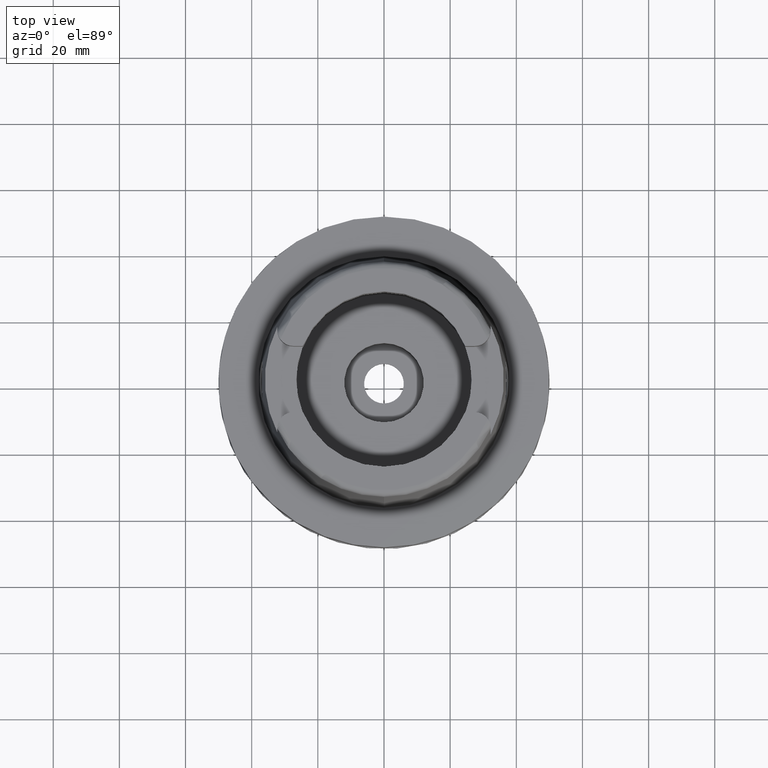
[diagram: clean part render]
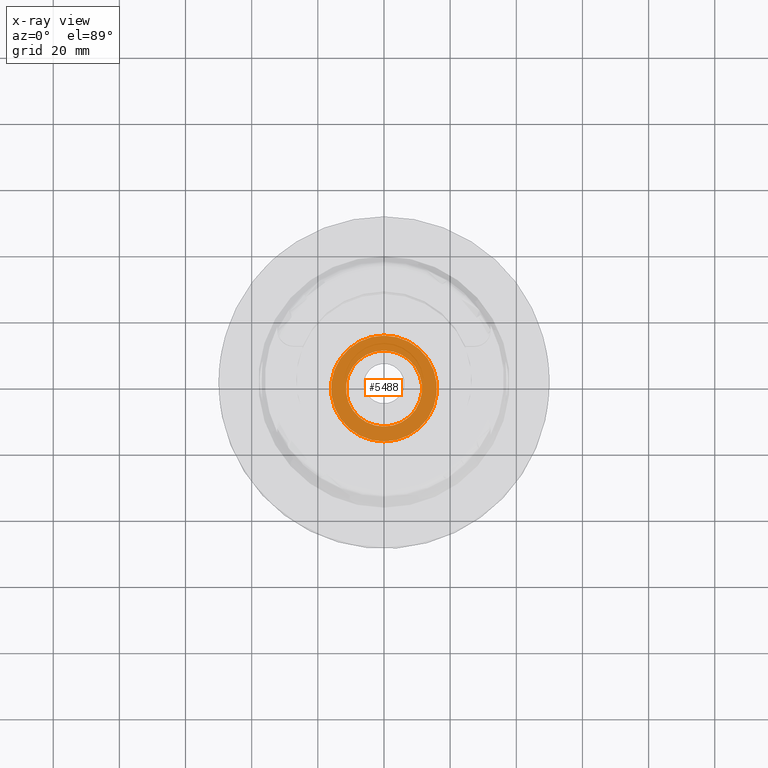
[diagram: x-ray — body ghosted, one internal face saturated and labeled with its STEP entity id]
A machine part, top view, then the same camera in x-ray: the body is ghosted and one INTERNAL B-rep face — a face not visible from any outside direction — is saturated and labeled: STEP entity #5488.
In plain terms, the highlighted planar face has unit normal (0, 0, -1).
Its self-contained STEP definition (entity closure, byte-faithful):
#262 = CARTESIAN_POINT ( 'NONE',  ( 0.0000000000000000000, 16.00000000000000000, -10.80000000000000071 ) ) ;
#317 = DIRECTION ( 'NONE',  ( 0.0000000000000000000, 0.0000000000000000000, -1.000000000000000000 ) ) ;
#409 = CARTESIAN_POINT ( 'NONE',  ( 0.0000000000000000000, 0.0000000000000000000, -10.80000000000000071 ) ) ;
#774 = CARTESIAN_POINT ( 'NONE',  ( 0.0000000000000000000, 0.0000000000000000000, -10.80000000000000071 ) ) ;
#909 = DIRECTION ( 'NONE',  ( 0.0000000000000000000, 0.0000000000000000000, 1.000000000000000000 ) ) ;
#1116 = CIRCLE ( 'NONE', #1893, 11.50000000000000000 ) ;
#1205 = CARTESIAN_POINT ( 'NONE',  ( 0.0000000000000000000, 11.50000000000000000, -10.80000000000000071 ) ) ;
#1244 = FACE_OUTER_BOUND ( 'NONE', #3922, .T. ) ;
#1722 = CIRCLE ( 'NONE', #5151, 11.50000000000000000 ) ;
#1729 = EDGE_CURVE ( 'NONE', #4338, #5584, #1116, .T. ) ;
#1732 = DIRECTION ( 'NONE',  ( 0.0000000000000000000, 0.0000000000000000000, 1.000000000000000000 ) ) ;
#1874 = CARTESIAN_POINT ( 'NONE',  ( 0.0000000000000000000, -11.50000000000000000, -10.80000000000000071 ) ) ;
#1893 = AXIS2_PLACEMENT_3D ( 'NONE', #2650, #1732, #4030 ) ;
#2224 = CIRCLE ( 'NONE', #5356, 16.00000000000000000 ) ;
#2320 = DIRECTION ( 'NONE',  ( 0.0000000000000000000, -1.000000000000000000, 0.0000000000000000000 ) ) ;
#2575 = EDGE_LOOP ( 'NONE', ( #4136, #3324 ) ) ;
#2650 = CARTESIAN_POINT ( 'NONE',  ( 0.0000000000000000000, 0.0000000000000000000, -10.80000000000000071 ) ) ;
#2818 = ORIENTED_EDGE ( 'NONE', *, *, #4543, .F. ) ;
#3023 = DIRECTION ( 'NONE',  ( 0.0000000000000000000, 0.0000000000000000000, -1.000000000000000000 ) ) ;
#3114 = AXIS2_PLACEMENT_3D ( 'NONE', #774, #317, #4063 ) ;
#3151 = DIRECTION ( 'NONE',  ( 0.0000000000000000000, 1.000000000000000000, 0.0000000000000000000 ) ) ;
#3184 = ORIENTED_EDGE ( 'NONE', *, *, #5369, .F. ) ;
#3196 = VERTEX_POINT ( 'NONE', #262 ) ;
#3324 = ORIENTED_EDGE ( 'NONE', *, *, #5060, .F. ) ;
#3510 = CARTESIAN_POINT ( 'NONE',  ( 0.0000000000000000000, -16.00000000000000000, -10.80000000000000071 ) ) ;
#3922 = EDGE_LOOP ( 'NONE', ( #3184, #2818 ) ) ;
#4030 = DIRECTION ( 'NONE',  ( 0.0000000000000000000, 1.000000000000000000, 0.0000000000000000000 ) ) ;
#4032 = DIRECTION ( 'NONE',  ( 0.0000000000000000000, 0.0000000000000000000, -1.000000000000000000 ) ) ;
#4063 = DIRECTION ( 'NONE',  ( 0.0000000000000000000, -1.000000000000000000, 0.0000000000000000000 ) ) ;
#4136 = ORIENTED_EDGE ( 'NONE', *, *, #1729, .F. ) ;
#4298 = VERTEX_POINT ( 'NONE', #3510 ) ;
#4338 = VERTEX_POINT ( 'NONE', #1205 ) ;
#4475 = CARTESIAN_POINT ( 'NONE',  ( 0.0000000000000000000, 0.0000000000000000000, -10.80000000000000071 ) ) ;
#4543 = EDGE_CURVE ( 'NONE', #4298, #3196, #2224, .T. ) ;
#4673 = AXIS2_PLACEMENT_3D ( 'NONE', #409, #4032, #3151 ) ;
#4973 = PLANE ( 'NONE',  #3114 ) ;
#5006 = FACE_BOUND ( 'NONE', #2575, .T. ) ;
#5060 = EDGE_CURVE ( 'NONE', #5584, #4338, #1722, .T. ) ;
#5142 = CARTESIAN_POINT ( 'NONE',  ( 0.0000000000000000000, 0.0000000000000000000, -10.80000000000000071 ) ) ;
#5151 = AXIS2_PLACEMENT_3D ( 'NONE', #5142, #909, #2320 ) ;
#5334 = DIRECTION ( 'NONE',  ( 0.0000000000000000000, -1.000000000000000000, 0.0000000000000000000 ) ) ;
#5356 = AXIS2_PLACEMENT_3D ( 'NONE', #4475, #3023, #5334 ) ;
#5369 = EDGE_CURVE ( 'NONE', #3196, #4298, #5550, .T. ) ;
#5488 = ADVANCED_FACE ( 'NONE', ( #1244, #5006 ), #4973, .F. ) ;
#5550 = CIRCLE ( 'NONE', #4673, 16.00000000000000000 ) ;
#5584 = VERTEX_POINT ( 'NONE', #1874 ) ;